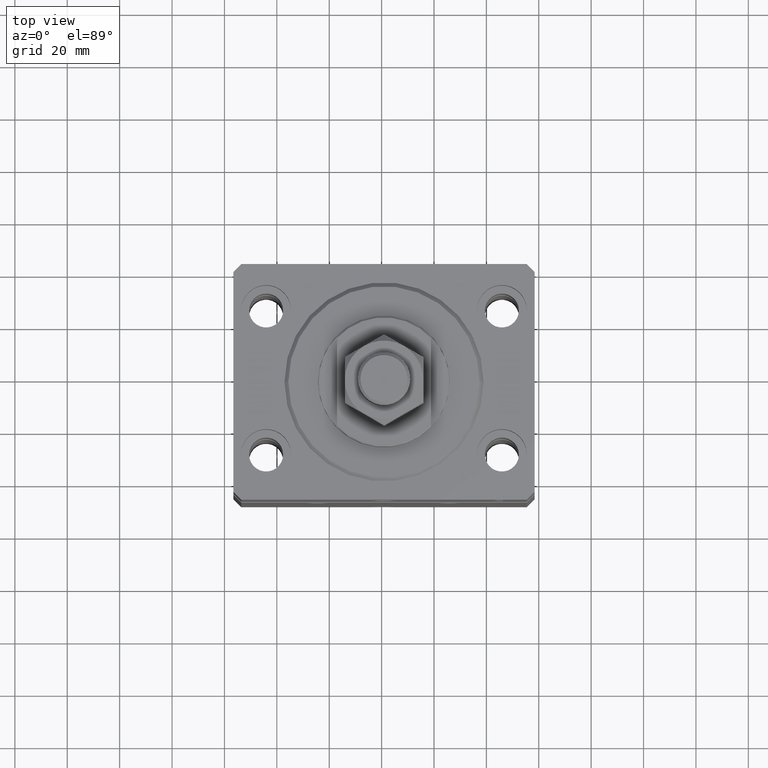
[diagram: clean part render]
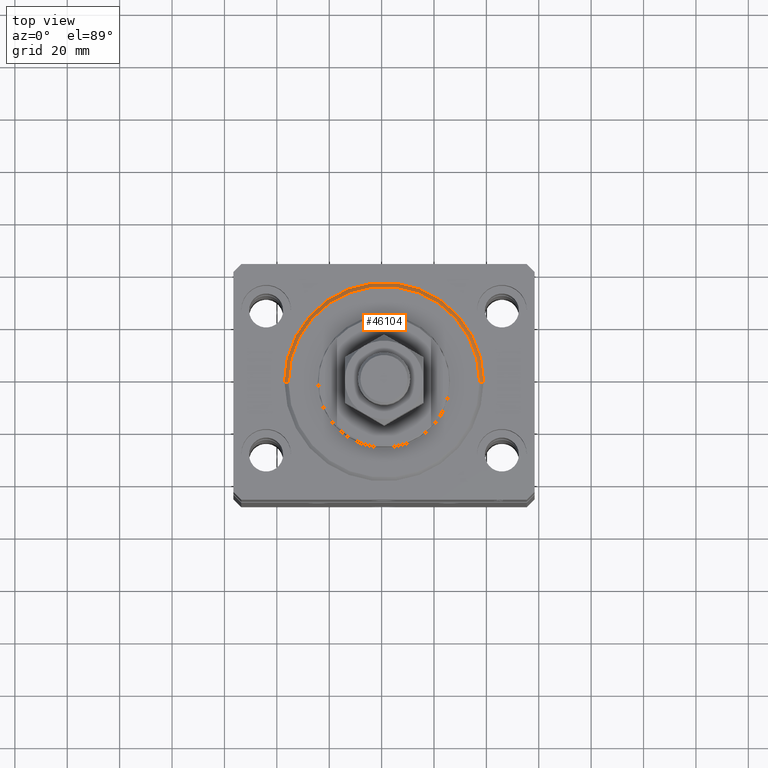
[diagram: same view with one face highlighted and labeled with its STEP entity id]
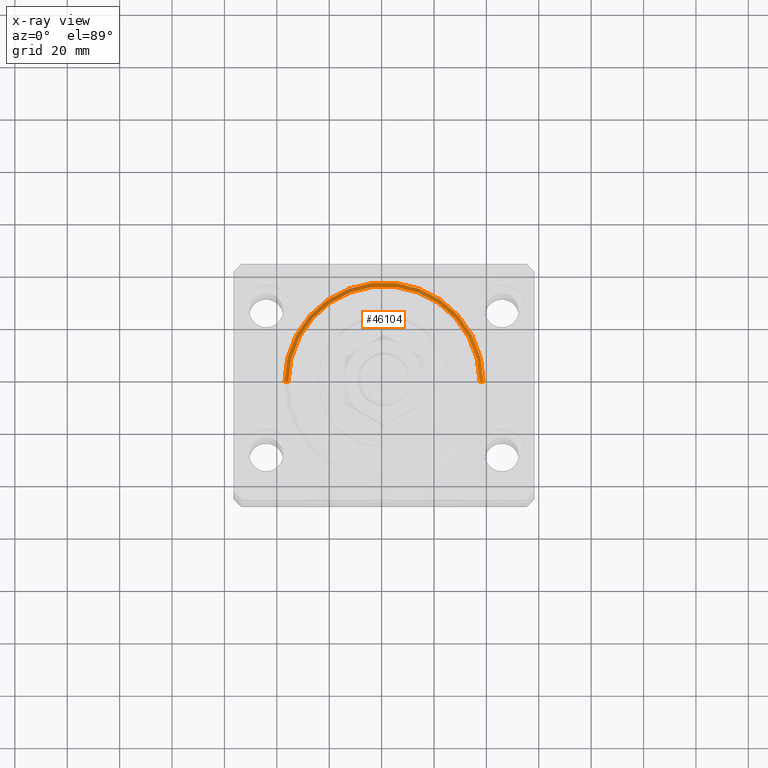
[diagram: x-ray of the same camera — body ghosted, the highlighted face saturated]
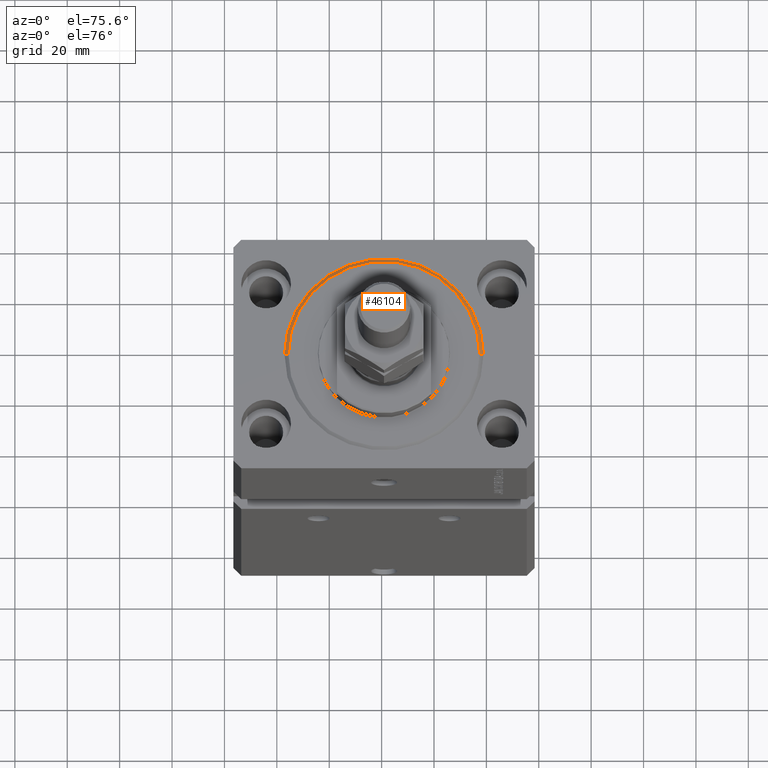
[diagram: same view with one face highlighted and labeled with its STEP entity id]
A machine part, top view. The second image highlights one B-rep face of the part: STEP entity #46104.
The next image is the same camera in x-ray: the body ghosted, the highlighted face saturated — about 0% of this face is hidden behind the body in this view.
A second angle (auxiliary view) of the same face is appended — the face is thin or edge-on in the first view.
In plain terms, the highlighted conical surface has half-angle 45 deg.
Its self-contained STEP definition (entity closure, byte-faithful):
#1839 = AXIS2_PLACEMENT_3D ( 'NONE', #47004, #22327, #37160 ) ;
#3446 = VERTEX_POINT ( 'NONE', #29905 ) ;
#4927 = CIRCLE ( 'NONE', #1839, 38.00000000000000000 ) ;
#6376 = DIRECTION ( 'NONE',  ( 1.000000000000000000, 0.000000000000000000, 0.000000000000000000 ) ) ;
#6781 = ORIENTED_EDGE ( 'NONE', *, *, #13078, .F. ) ;
#6820 = VECTOR ( 'NONE', #15884, 1000.000000000000114 ) ;
#7385 = EDGE_CURVE ( 'NONE', #27939, #39284, #30948, .T. ) ;
#7632 = CIRCLE ( 'NONE', #36364, 36.50000000000000000 ) ;
#9892 = CONICAL_SURFACE ( 'NONE', #23064, 38.00000000000000000, 0.7853981633974506105 ) ;
#9920 = EDGE_CURVE ( 'NONE', #38339, #3446, #10876, .T. ) ;
#10251 = CARTESIAN_POINT ( 'NONE',  ( 0.000000000000000000, 0.000000000000000000, 1.499999999999994449 ) ) ;
#10586 = DIRECTION ( 'NONE',  ( -0.000000000000000000, -0.000000000000000000, -1.000000000000000000 ) ) ;
#10738 = CARTESIAN_POINT ( 'NONE',  ( 36.50000000000000000, 0.000000000000000000, 0.000000000000000000 ) ) ;
#10876 = LINE ( 'NONE', #40301, #34818 ) ;
#13078 = EDGE_CURVE ( 'NONE', #27939, #38339, #7632, .T. ) ;
#13877 = DIRECTION ( 'NONE',  ( -0.000000000000000000, -0.000000000000000000, 1.000000000000000000 ) ) ;
#15335 = CARTESIAN_POINT ( 'NONE',  ( -38.00000000000000000, 0.000000000000000000, 1.499999999999994449 ) ) ;
#15884 = DIRECTION ( 'NONE',  ( -0.7071067811865491270, 8.659560562354953812E-17, 0.7071067811865459074 ) ) ;
#19538 = CARTESIAN_POINT ( 'NONE',  ( -38.00000000000000000, 4.653657836759941941E-15, 1.499999999999994449 ) ) ;
#22327 = DIRECTION ( 'NONE',  ( -0.000000000000000000, -0.000000000000000000, 1.000000000000000000 ) ) ;
#23064 = AXIS2_PLACEMENT_3D ( 'NONE', #10251, #13877, #6376 ) ;
#24076 = EDGE_CURVE ( 'NONE', #3446, #39284, #4927, .T. ) ;
#24441 = CARTESIAN_POINT ( 'NONE',  ( 0.000000000000000000, 0.000000000000000000, 0.000000000000000000 ) ) ;
#25503 = ORIENTED_EDGE ( 'NONE', *, *, #9920, .F. ) ;
#27939 = VERTEX_POINT ( 'NONE', #46888 ) ;
#28663 = ORIENTED_EDGE ( 'NONE', *, *, #24076, .F. ) ;
#29567 = DIRECTION ( 'NONE',  ( 0.7071067811865491270, 0.000000000000000000, 0.7071067811865459074 ) ) ;
#29905 = CARTESIAN_POINT ( 'NONE',  ( 38.00000000000000000, 4.653657836759941941E-15, 1.499999999999994449 ) ) ;
#30948 = LINE ( 'NONE', #19538, #6820 ) ;
#32097 = EDGE_LOOP ( 'NONE', ( #6781, #39884, #28663, #25503 ) ) ;
#34818 = VECTOR ( 'NONE', #29567, 1000.000000000000114 ) ;
#36364 = AXIS2_PLACEMENT_3D ( 'NONE', #24441, #10586, #40240 ) ;
#37160 = DIRECTION ( 'NONE',  ( 1.000000000000000000, 0.000000000000000000, 0.000000000000000000 ) ) ;
#38339 = VERTEX_POINT ( 'NONE', #10738 ) ;
#39284 = VERTEX_POINT ( 'NONE', #15335 ) ;
#39664 = FACE_OUTER_BOUND ( 'NONE', #32097, .T. ) ;
#39884 = ORIENTED_EDGE ( 'NONE', *, *, #7385, .T. ) ;
#40240 = DIRECTION ( 'NONE',  ( 1.000000000000000000, 0.000000000000000000, 0.000000000000000000 ) ) ;
#40301 = CARTESIAN_POINT ( 'NONE',  ( 38.00000000000000000, 0.000000000000000000, 1.499999999999994449 ) ) ;
#46104 = ADVANCED_FACE ( 'NONE', ( #39664 ), #9892, .T. ) ;
#46888 = CARTESIAN_POINT ( 'NONE',  ( -36.50000000000000000, 4.561809326823889791E-15, 0.000000000000000000 ) ) ;
#47004 = CARTESIAN_POINT ( 'NONE',  ( 0.000000000000000000, 0.000000000000000000, 1.499999999999994449 ) ) ;